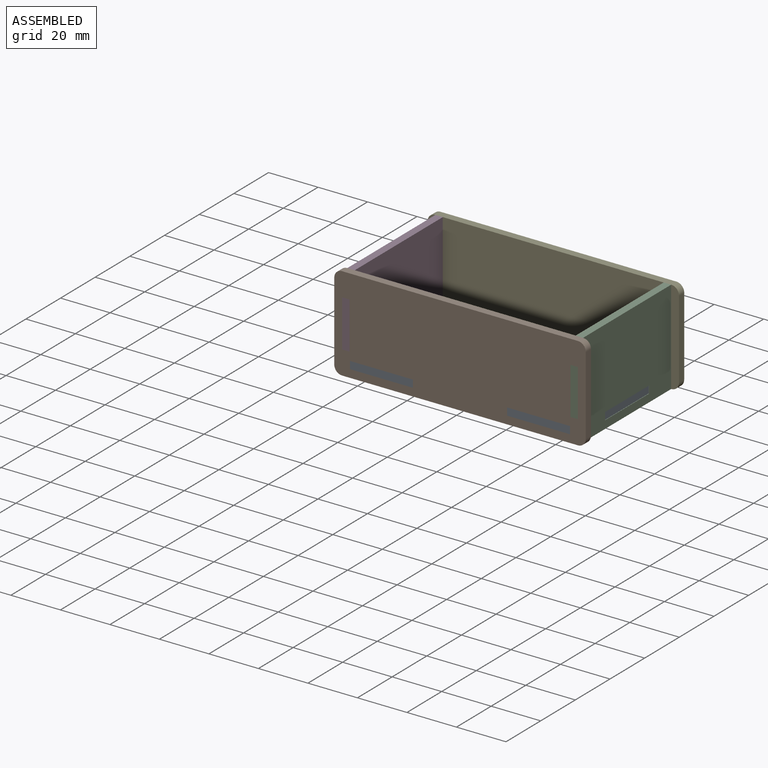
[diagram: assembled view]
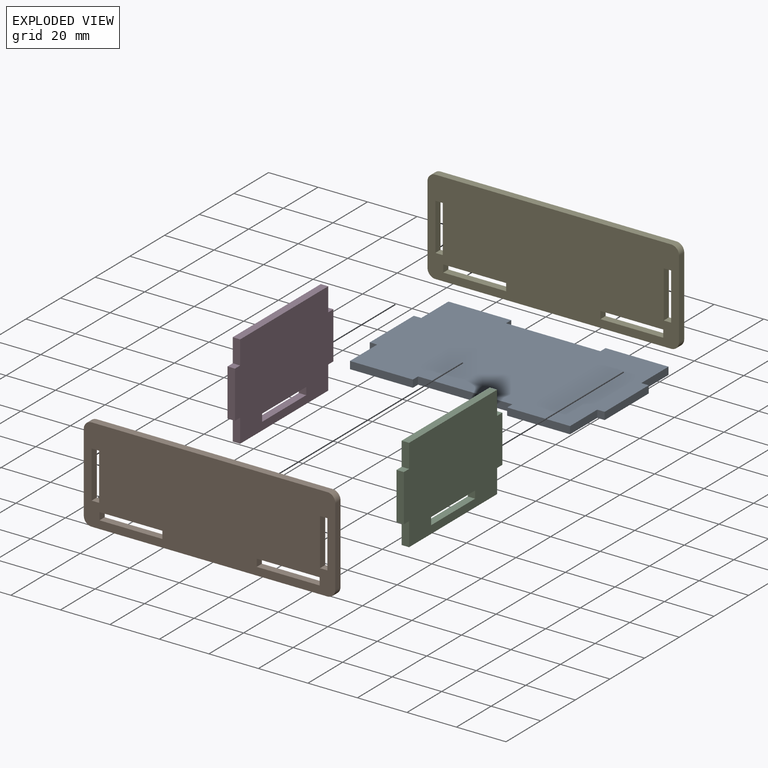
[diagram: exploded view]
GUIDED TOUR — MATED ASSEMBLY (Onshape document 2374aaf745cde1beca33ddbc, AutoMate assembly 2374aaf745cde1beca33ddbc_a4e29b9046c0e8ecc1a48bc9_9db063a48ec7c99bea0e0dff_default)

This assembly has 5 components, labeled P0..P4 below (a component is one placed occurrence of a part; the same part can appear more than once), held together by 4 mates. A mate is a constraint between two components; its type names the relative motion it leaves free:
  FASTENED — locks the two components together rigidly (no relative motion).
Axis/direction vectors are unit vectors and 'through' points are millimeter coordinates, both in the assembly's world frame.

MATES
  1. FASTENED "Fastened 3": P0 <-> P4, direction (0.000, 1.000, 0.000) through (25.46, 17.33, 14.54) mm
  2. FASTENED "Fastened 2": P2 <-> P4, direction (0.000, 1.000, 0.000) through (25.64, 17.33, 36.95) mm
  3. FASTENED "Fastened 4": P1 <-> P0, direction (0.000, -1.000, 0.000) through (-38.04, -39.46, 14.54) mm
  4. FASTENED "Fastened 1": P3 <-> P4, direction (0.000, 1.000, 0.000) through (-63.61, 17.33, 36.95) mm

ASSEMBLY ORDER
  1. P0 — the base component [order verified]
  2. P4 [order verified]
  3. P1 [order verified]
  4. P2 [order verified]
  5. P3 [order verified]
Order-tag legend:
  [order verified] — this step's position reverses a verified removal order: the component was checked to insert without passing through the ones already placed.

Of the 5 components, 5 carry the full construction recipe — the FeatureScript program that regenerates the part's solid from scratch; the rest are supplied as boundary geometry only.
Each toured component is shown spotlighted twice — in the assembled view, then in the exploded view, where a leader line traces a displaced component back to its assembled socket (saturated green if recipe-attached, orange if geometry-only; every other component desaturated gray) — followed by its recipe or geometry summary and the mates that hold it.
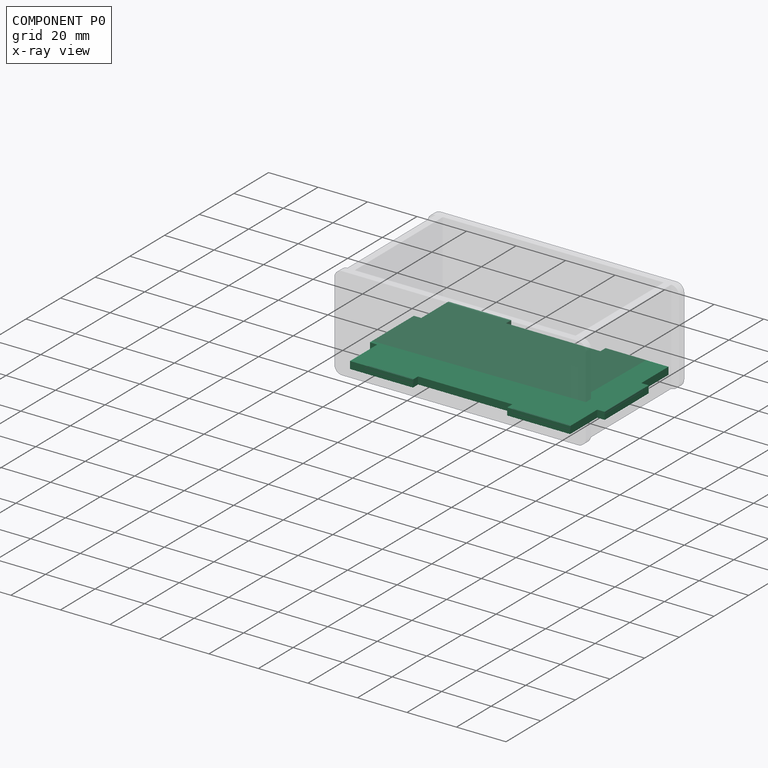
[diagram: component P0 — x-ray view]
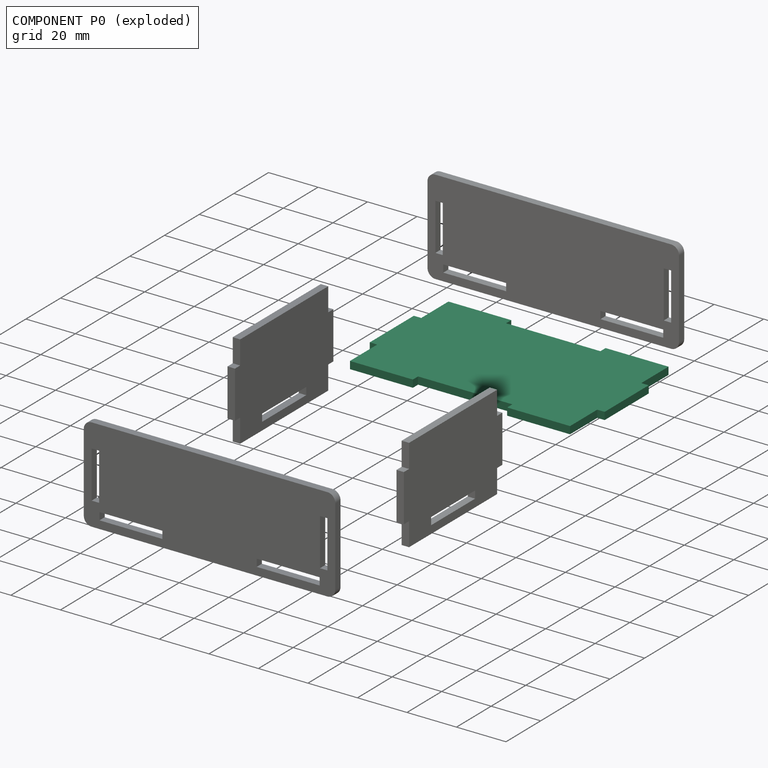
[diagram: component P0 — exploded]
COMPONENT P0 — recipe-attached (CADFS 00106038, mesh-verified: the recipe's output STEP matches this component's geometry to below the mesh-comparison resolution (tessellation chordal tolerance ~0.166 mm)).
Held by: FASTENED mate "Fastened 3" to P4; FASTENED mate "Fastened 4" to P1.
Construction recipe (FeatureScript — the CAD program that rebuilds this solid; sketch coordinates are in the units given by the * unit suffixes, e.g. mm):

FeatureScript 1511;
import(path : "onshape/std/geometry.fs", version : "1511.0");
import(path : "onshape/std/common.fs", version : "1511.0");
const mm = millimeter;
const VERTEX = EntityType.VERTEX;
const EDGE = EntityType.EDGE;
const FACE = EntityType.FACE;
const BODY = EntityType.BODY;
function v(x, y){return vector(x, y);}
function OD(order){return orderDisambiguation(order);}
function OSD(set){return originalSetDisambiguation(set);}
function TD(topology){return topologyDisambiguation(topology);}
function TDD(query){return trueDependencyDisambiguation(query);}
function sQuery(a, b, c) {return sketchEntityQuery(a, b, c);}

annotation { "Feature Type Name" : "Feature", "Feature Type Description" : "" }
export const myFeature = defineFeature(function(context is Context, id is Id, definition is map)
    precondition{}
    {
        {
            var Q0;
            Q0=qCreatedBy(makeId("Top.planeOp"),FACE);
            var sketch = newSketch(context, id + "F0", { "sketchPlane" : qUnion([Q0])});
            skLineSegment(sketch, "E0", {"start": v(0, 0) * mm, "end": v(19.05, 0) * mm});
            skLineSegment(sketch, "E1", {"start": v(19.05, 0) * mm, "end": v(19.05, 3) * mm});
            skLineSegment(sketch, "E2", {"start": v(19.05, 3) * mm, "end": v(44.45, 3) * mm});
            skLineSegment(sketch, "E3", {"start": v(44.45, 3) * mm, "end": v(44.45, 0) * mm});
            skLineSegment(sketch, "E4", {"start": v(44.45, -12.7) * mm, "end": v(47.45, -12.7) * mm});
            skLineSegment(sketch, "E5", {"start": v(47.45, -12.7) * mm, "end": v(47.45, -25.4) * mm});
            skLineSegment(sketch, "E6.MirrorCS", {"start": v(-19.05, 0) * mm, "end": v(-19.05, 3) * mm});
            skLineSegment(sketch, "E7.MirrorCS", {"start": v(-47.45, -12.7) * mm, "end": v(-47.45, -25.4) * mm});
            skLineSegment(sketch, "E8.MirrorCS", {"start": v(0, 0) * mm, "end": v(-19.05, 0) * mm});
            skLineSegment(sketch, "E9.MirrorCS", {"start": v(-44.45, -12.7) * mm, "end": v(-47.45, -12.7) * mm});
            skLineSegment(sketch, "E10.MirrorCS", {"start": v(-19.05, 3) * mm, "end": v(-44.45, 3) * mm});
            skLineSegment(sketch, "E11.MirrorCS", {"start": v(-44.45, 3) * mm, "end": v(-44.45, 0) * mm});
            skLineSegment(sketch, "E12", {"start": v(-47.45, -25.4) * mm, "end": v(47.45, -25.4) * mm, "construction": true});
            skLineSegment(sketch, "E13.MirrorCS", {"start": v(-44.45, -53.8) * mm, "end": v(-44.45, -50.8) * mm});
            skLineSegment(sketch, "E14.MirrorCS", {"start": v(19.05, -50.8) * mm, "end": v(19.05, -53.8) * mm});
            skLineSegment(sketch, "E15.MirrorCS", {"start": v(44.45, -53.8) * mm, "end": v(44.45, -50.8) * mm});
            skLineSegment(sketch, "E16.MirrorCS", {"start": v(-19.05, -50.8) * mm, "end": v(-19.05, -53.8) * mm});
            skLineSegment(sketch, "E17.MirrorCS", {"start": v(47.45, -38.1) * mm, "end": v(47.45, -25.4) * mm});
            skLineSegment(sketch, "E18.MirrorCS", {"start": v(-19.05, -53.8) * mm, "end": v(-44.45, -53.8) * mm});
            skLineSegment(sketch, "E19.MirrorCS", {"start": v(-44.45, -38.1) * mm, "end": v(-47.45, -38.1) * mm});
            skLineSegment(sketch, "E20.MirrorCS", {"start": v(0, -50.8) * mm, "end": v(19.05, -50.8) * mm});
            skLineSegment(sketch, "E21.MirrorCS", {"start": v(19.05, -53.8) * mm, "end": v(44.45, -53.8) * mm});
            skLineSegment(sketch, "E22.MirrorCS", {"start": v(44.45, -38.1) * mm, "end": v(47.45, -38.1) * mm});
            skLineSegment(sketch, "E23.MirrorCS", {"start": v(-47.45, -38.1) * mm, "end": v(-47.45, -25.4) * mm});
            skLineSegment(sketch, "E24.MirrorCS", {"start": v(0, -50.8) * mm, "end": v(-19.05, -50.8) * mm});
            skLineSegment(sketch, "E25", {"start": v(-44.45, 0) * mm, "end": v(-44.45, -12.7) * mm});
            skLineSegment(sketch, "E26", {"start": v(-44.45, -38.1) * mm, "end": v(-44.45, -50.8) * mm});
            skLineSegment(sketch, "E27", {"start": v(44.45, 0) * mm, "end": v(44.45, -12.7) * mm});
            skLineSegment(sketch, "E28", {"start": v(44.45, -38.1) * mm, "end": v(44.45, -50.8) * mm});
            skSolve(sketch);
        }
        {
            var Q0;
            Q0=makeQuery(id+"F0.imprint","IMPRINT",FACE,{"disambiguationData":[TD([[makeQuery(id+"F0.imprint","IMPRINT",EDGE,{"derivedFrom":sQuery(id+"F0.wireOp",EDGE,"E3")}),-1.0]])]});
            extrude(context, id + "F1", {"entities" : qUnion([Q0]), "depth" : 3 * mm});
        }
    });
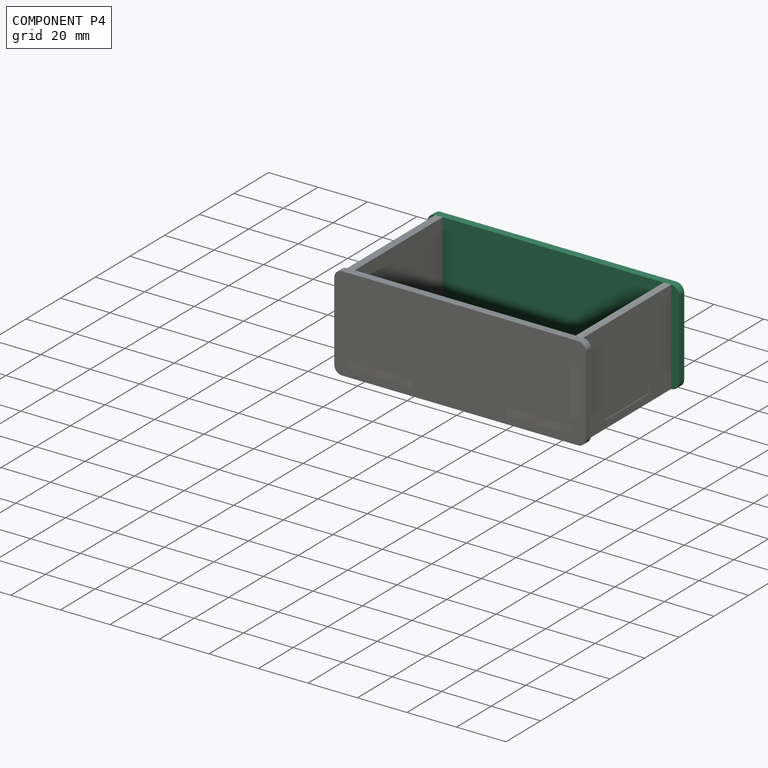
[diagram: component P4 — assembled]
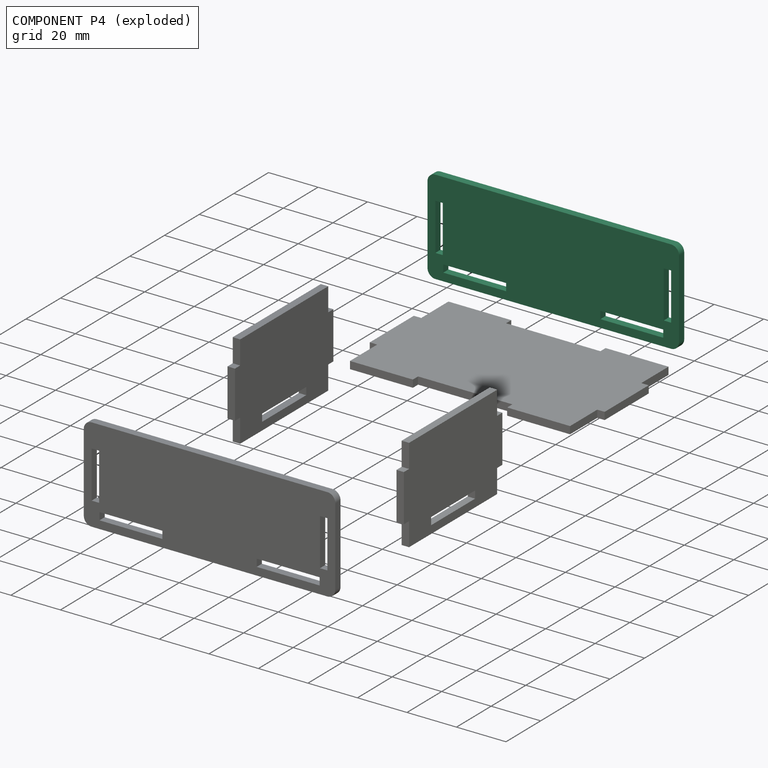
[diagram: component P4 — exploded]
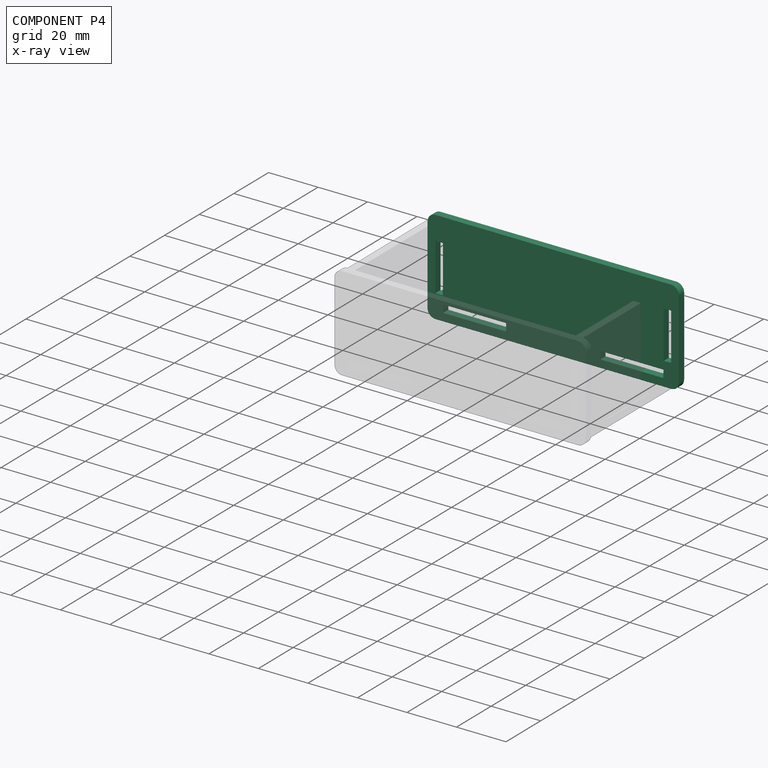
[diagram: component P4 — x-ray view]
COMPONENT P4 — same part as P1 (CADFS 00106036); its construction recipe is shown at P1.
Held by: FASTENED mate "Fastened 3" to P0; FASTENED mate "Fastened 2" to P2; FASTENED mate "Fastened 1" to P3.
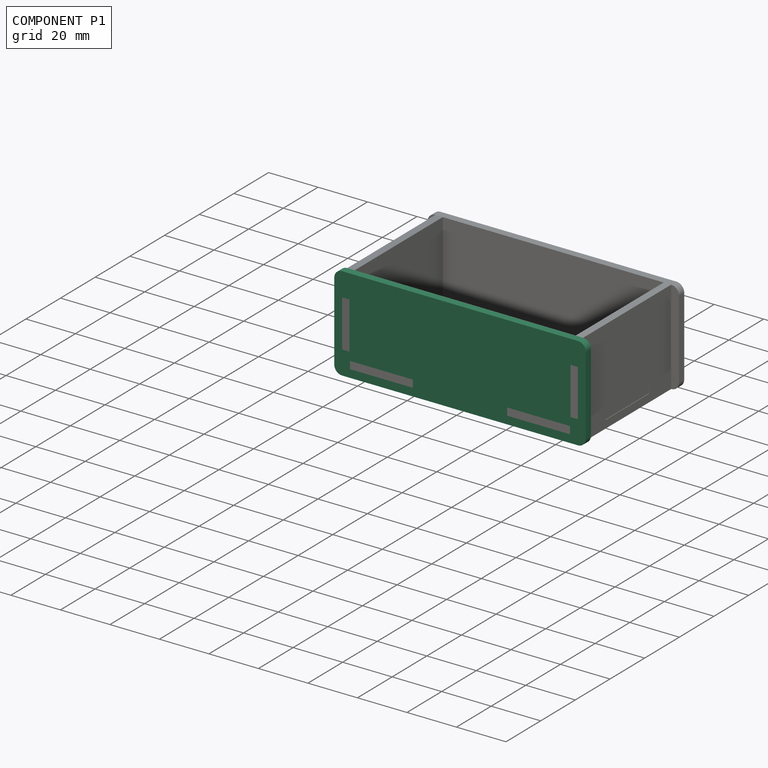
[diagram: component P1 — assembled]
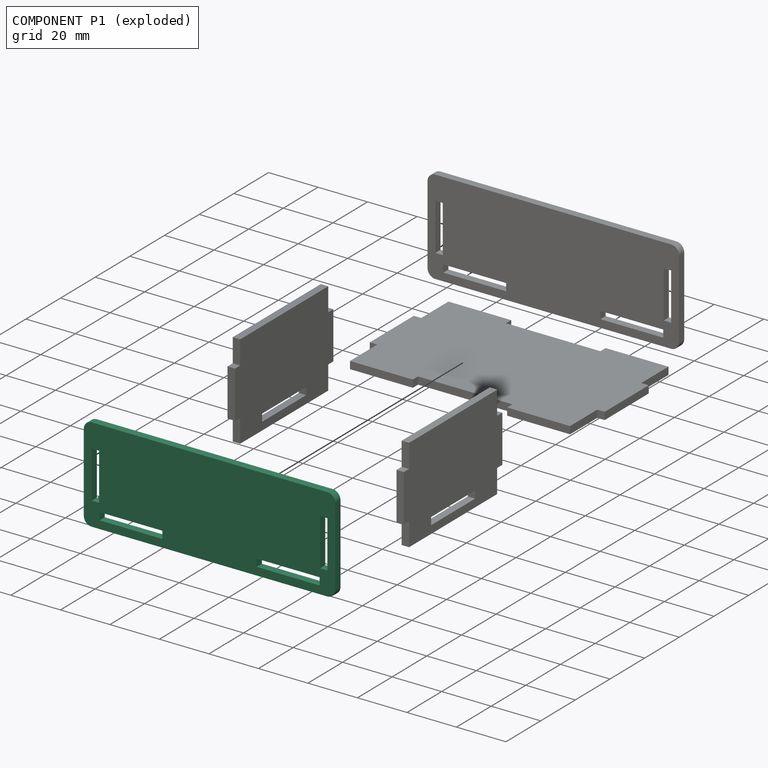
[diagram: component P1 — exploded]
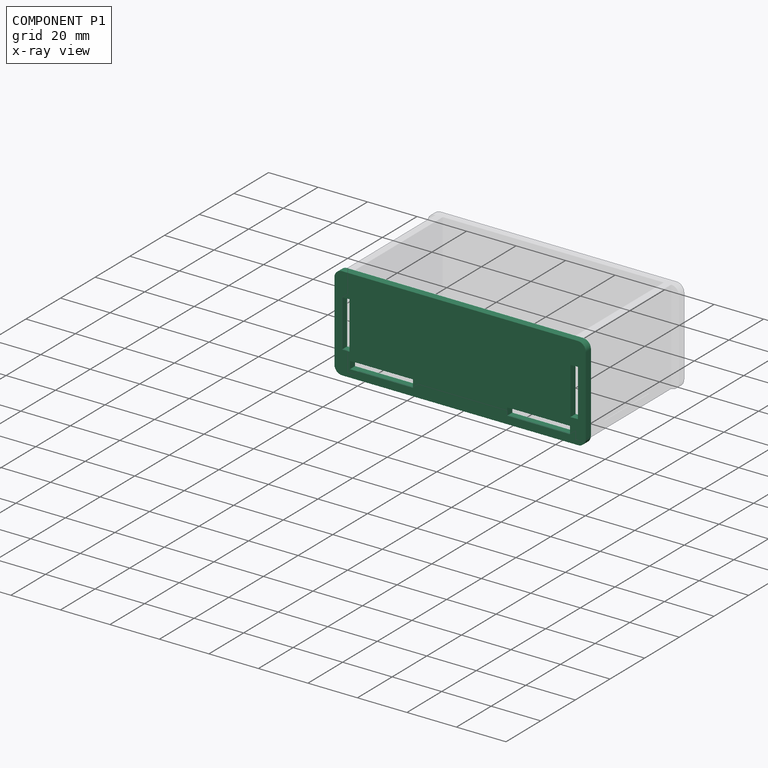
[diagram: component P1 — x-ray view]
COMPONENT P1 — recipe-attached (CADFS 00106036, mesh-verified: the recipe's output STEP matches this component's geometry to below the mesh-comparison resolution (tessellation chordal tolerance ~0.163 mm)).
Held by: FASTENED mate "Fastened 4" to P0.
Construction recipe (FeatureScript — the CAD program that rebuilds this solid; sketch coordinates are in the units given by the * unit suffixes, e.g. mm):

FeatureScript 1511;
import(path : "onshape/std/geometry.fs", version : "1511.0");
import(path : "onshape/std/common.fs", version : "1511.0");
const mm = millimeter;
const VERTEX = EntityType.VERTEX;
const EDGE = EntityType.EDGE;
const FACE = EntityType.FACE;
const BODY = EntityType.BODY;
function v(x, y){return vector(x, y);}
function OD(order){return orderDisambiguation(order);}
function OSD(set){return originalSetDisambiguation(set);}
function TD(topology){return topologyDisambiguation(topology);}
function TDD(query){return trueDependencyDisambiguation(query);}
function sQuery(a, b, c) {return sketchEntityQuery(a, b, c);}

annotation { "Feature Type Name" : "Feature", "Feature Type Description" : "" }
export const myFeature = defineFeature(function(context is Context, id is Id, definition is map)
    precondition{}
    {
        {
            var Q0;
            Q0=qCreatedBy(makeId("Front.planeOp"),FACE);
            var sketch = newSketch(context, id + "F0", { "sketchPlane" : qUnion([Q0])});
            skLineSegment(sketch, "E0.bottom", {"start": v(-47.63, 0) * mm, "end": v(47.63, 0) * mm});
            skLineSegment(sketch, "E0.top", {"start": v(-47.63, 38.1) * mm, "end": v(47.63, 38.1) * mm});
            skLineSegment(sketch, "E0.left", {"start": v(-50.8, 3.18) * mm, "end": v(-50.8, 34.92) * mm});
            skLineSegment(sketch, "E0.right", {"start": v(50.8, 3.18) * mm, "end": v(50.8, 34.93) * mm});
            skLineSegment(sketch, "E1.bottom", {"start": v(-44.45, 3.17) * mm, "end": v(-19.05, 3.17) * mm});
            skLineSegment(sketch, "E1.top", {"start": v(-44.45, 6.17) * mm, "end": v(-19.05, 6.17) * mm});
            skLineSegment(sketch, "E1.left", {"start": v(-44.45, 3.17) * mm, "end": v(-44.45, 6.17) * mm});
            skLineSegment(sketch, "E1.right", {"start": v(-19.05, 3.17) * mm, "end": v(-19.05, 6.17) * mm});
            skLineSegment(sketch, "E2.bottom", {"start": v(19.05, 3.17) * mm, "end": v(44.45, 3.17) * mm});
            skLineSegment(sketch, "E2.top", {"start": v(19.05, 6.17) * mm, "end": v(44.45, 6.17) * mm});
            skLineSegment(sketch, "E2.left", {"start": v(19.05, 3.17) * mm, "end": v(19.05, 6.17) * mm});
            skLineSegment(sketch, "E2.right", {"start": v(44.45, 3.17) * mm, "end": v(44.45, 6.17) * mm});
            skLineSegment(sketch, "E3.bottom", {"start": v(-44.63, 28.57) * mm, "end": v(-47.62, 28.57) * mm});
            skLineSegment(sketch, "E3.top", {"start": v(-44.63, 9.53) * mm, "end": v(-47.62, 9.53) * mm});
            skLineSegment(sketch, "E3.left", {"start": v(-44.63, 28.57) * mm, "end": v(-44.63, 9.52) * mm});
            skLineSegment(sketch, "E3.right", {"start": v(-47.63, 28.57) * mm, "end": v(-47.63, 9.53) * mm});
            skLineSegment(sketch, "E4.bottom", {"start": v(47.62, 28.57) * mm, "end": v(44.63, 28.57) * mm});
            skLineSegment(sketch, "E4.top", {"start": v(47.62, 9.52) * mm, "end": v(44.63, 9.52) * mm});
            skLineSegment(sketch, "E4.left", {"start": v(47.63, 28.57) * mm, "end": v(47.63, 9.52) * mm});
            skLineSegment(sketch, "E4.right", {"start": v(44.63, 28.58) * mm, "end": v(44.63, 9.53) * mm});
            skPoint(sketch, "E5.visualSharp", {"position": v(-50.8, 38.1) * mm});
            skArc(sketch, "E5.filletArc", {"start": v(-47.63, 38.1) * mm, "mid": v(-49.87, 37.17) * mm, "end": v(-50.8, 34.92) * mm});
            skPoint(sketch, "E6.visualSharp", {"position": v(50.8, 38.1) * mm});
            skArc(sketch, "E6.filletArc", {"start": v(50.8, 34.93) * mm, "mid": v(49.87, 37.17) * mm, "end": v(47.63, 38.1) * mm});
            skPoint(sketch, "E7.visualSharp", {"position": v(-50.8, 0) * mm});
            skArc(sketch, "E7.filletArc", {"start": v(-50.8, 3.17) * mm, "mid": v(-49.87, 0.93) * mm, "end": v(-47.63, 0) * mm});
            skPoint(sketch, "E8.visualSharp", {"position": v(50.8, 0) * mm});
            skArc(sketch, "E8.filletArc", {"start": v(47.63, 0) * mm, "mid": v(49.87, 0.93) * mm, "end": v(50.8, 3.18) * mm});
            skSolve(sketch);
        }
        {
            var Q0;
            Q0=makeQuery(id+"F0.imprint","IMPRINT",FACE,{"disambiguationData":[TD([[makeQuery(id+"F0.imprint","IMPRINT",EDGE,{"derivedFrom":sQuery(id+"F0.wireOp",EDGE,"E0.bottom")}),1.0]])]});
            extrude(context, id + "F1", {"entities" : qUnion([Q0]), "depth" : 3 * mm});
        }
    });
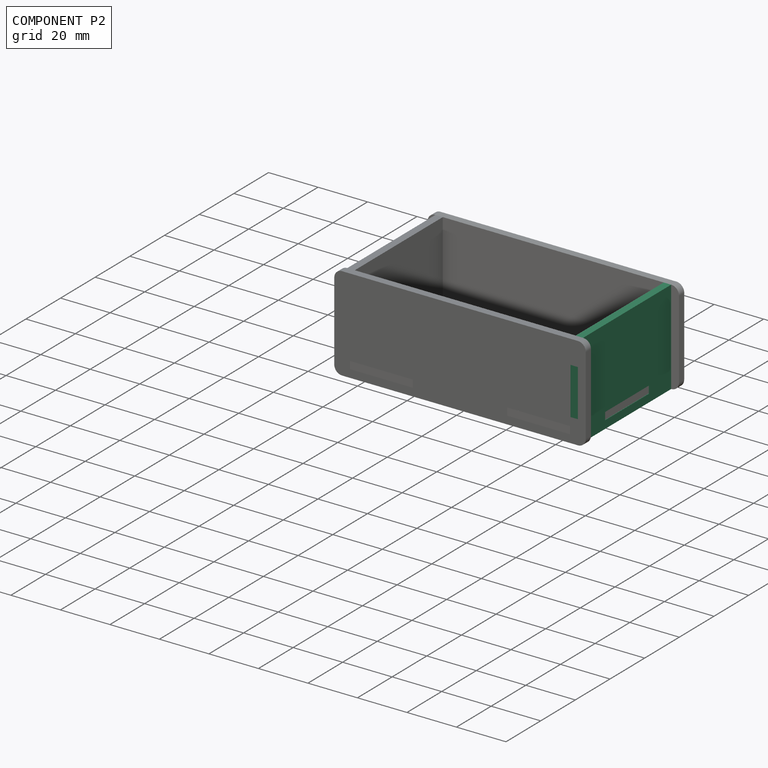
[diagram: component P2 — assembled]
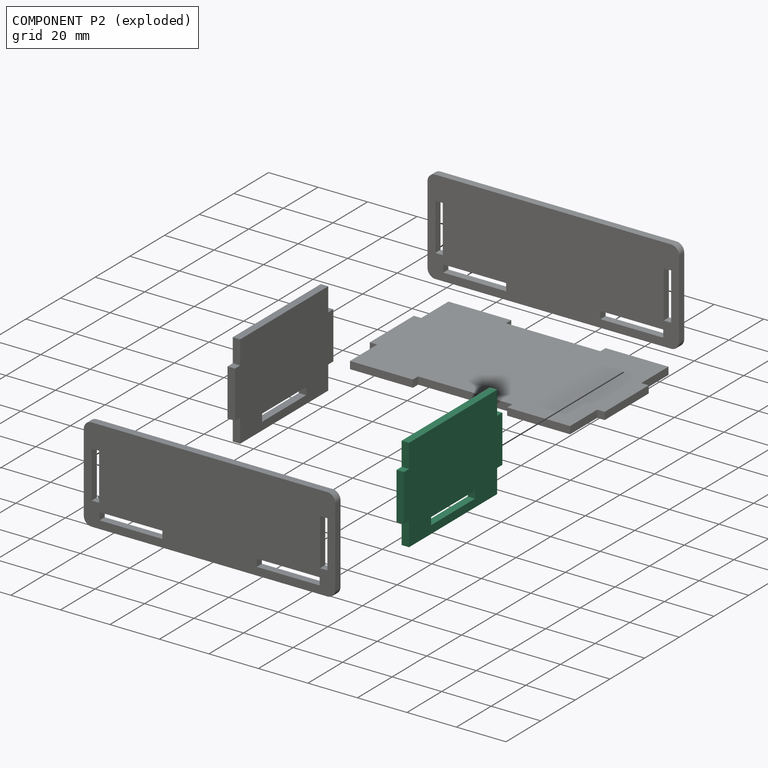
[diagram: component P2 — exploded]
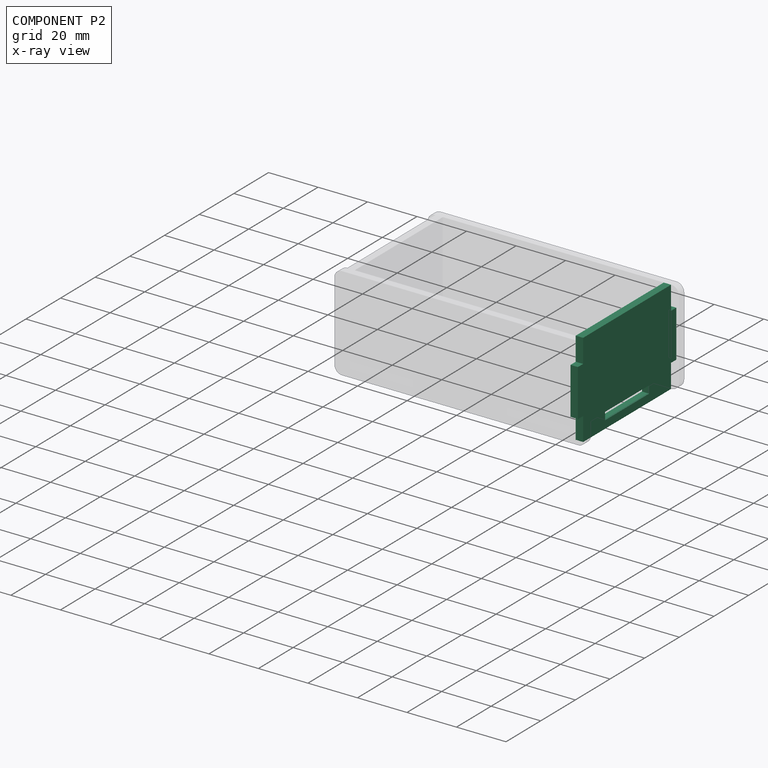
[diagram: component P2 — x-ray view]
COMPONENT P2 — recipe-attached (CADFS 00106037, mesh-verified: the recipe's output STEP matches this component's geometry to below the mesh-comparison resolution (tessellation chordal tolerance ~0.103 mm)).
Held by: FASTENED mate "Fastened 2" to P4.
Construction recipe (FeatureScript — the CAD program that rebuilds this solid; sketch coordinates are in the units given by the * unit suffixes, e.g. mm):

FeatureScript 1511;
import(path : "onshape/std/geometry.fs", version : "1511.0");
import(path : "onshape/std/common.fs", version : "1511.0");
const mm = millimeter;
const VERTEX = EntityType.VERTEX;
const EDGE = EntityType.EDGE;
const FACE = EntityType.FACE;
const BODY = EntityType.BODY;
function v(x, y){return vector(x, y);}
function OD(order){return orderDisambiguation(order);}
function OSD(set){return originalSetDisambiguation(set);}
function TD(topology){return topologyDisambiguation(topology);}
function TDD(query){return trueDependencyDisambiguation(query);}
function sQuery(a, b, c) {return sketchEntityQuery(a, b, c);}

annotation { "Feature Type Name" : "Feature", "Feature Type Description" : "" }
export const myFeature = defineFeature(function(context is Context, id is Id, definition is map)
    precondition{}
    {
        {
            var Q0;
            Q0=qCreatedBy(makeId("Right.planeOp"),FACE);
            var sketch = newSketch(context, id + "F0", { "sketchPlane" : qUnion([Q0])});
            skPoint(sketch, "E0.middle", {"position": v(0, 0) * mm});
            skLineSegment(sketch, "E1", {"start": v(-28.4, 9.53) * mm, "end": v(-25.4, 9.53) * mm});
            skLineSegment(sketch, "E2", {"start": v(-25.4, 9.53) * mm, "end": v(-25.4, 19.05) * mm});
            skLineSegment(sketch, "E3", {"start": v(-28.4, -9.52) * mm, "end": v(-25.4, -9.52) * mm});
            skLineSegment(sketch, "E4", {"start": v(-25.4, -9.53) * mm, "end": v(-25.4, -19.05) * mm});
            skLineSegment(sketch, "E5", {"start": v(-28.4, 9.53) * mm, "end": v(-28.4, -9.53) * mm});
            skLineSegment(sketch, "E6", {"start": v(-25.4, 19.05) * mm, "end": v(0, 19.05) * mm});
            skLineSegment(sketch, "E7", {"start": v(-25.4, -19.05) * mm, "end": v(0, -19.05) * mm});
            skLineSegment(sketch, "E8", {"start": v(0, -12.88) * mm, "end": v(-12.7, -12.88) * mm});
            skLineSegment(sketch, "E9", {"start": v(-12.7, -12.88) * mm, "end": v(-12.7, -15.88) * mm});
            skLineSegment(sketch, "E10", {"start": v(-12.7, -15.88) * mm, "end": v(0, -15.88) * mm});
            skLineSegment(sketch, "E11.MirrorCS", {"start": v(12.7, -12.88) * mm, "end": v(12.7, -15.88) * mm});
            skLineSegment(sketch, "E12.MirrorCS", {"start": v(28.4, 9.53) * mm, "end": v(25.4, 9.53) * mm});
            skLineSegment(sketch, "E13.MirrorCS", {"start": v(28.4, -9.52) * mm, "end": v(25.4, -9.52) * mm});
            skLineSegment(sketch, "E14.MirrorCS", {"start": v(25.4, 19.05) * mm, "end": v(0, 19.05) * mm});
            skLineSegment(sketch, "E15.MirrorCS", {"start": v(28.4, 9.53) * mm, "end": v(28.4, -9.53) * mm});
            skLineSegment(sketch, "E16.MirrorCS", {"start": v(25.4, -9.53) * mm, "end": v(25.4, -19.05) * mm});
            skLineSegment(sketch, "E17.MirrorCS", {"start": v(25.4, 9.53) * mm, "end": v(25.4, 19.05) * mm});
            skLineSegment(sketch, "E18.MirrorCS", {"start": v(12.7, -15.88) * mm, "end": v(0, -15.88) * mm});
            skLineSegment(sketch, "E19.MirrorCS", {"start": v(25.4, -19.05) * mm, "end": v(0, -19.05) * mm});
            skLineSegment(sketch, "E20.MirrorCS", {"start": v(0, -12.88) * mm, "end": v(12.7, -12.88) * mm});
            skSolve(sketch);
        }
        {
            var Q0;
            Q0=makeQuery(id+"F0.imprint","IMPRINT",FACE,{"disambiguationData":[TD([[makeQuery(id+"F0.imprint","IMPRINT",EDGE,{"derivedFrom":sQuery(id+"F0.wireOp",EDGE,"E1")}),-1.0]])]});
            extrude(context, id + "F1", {"entities" : qUnion([Q0]), "depth" : 3 * mm});
        }
    });
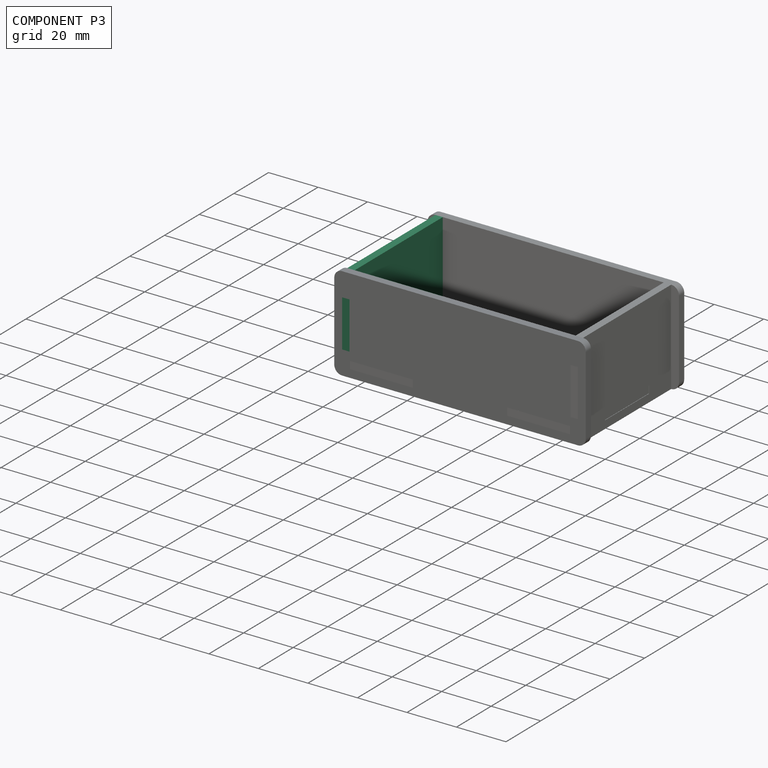
[diagram: component P3 — assembled]
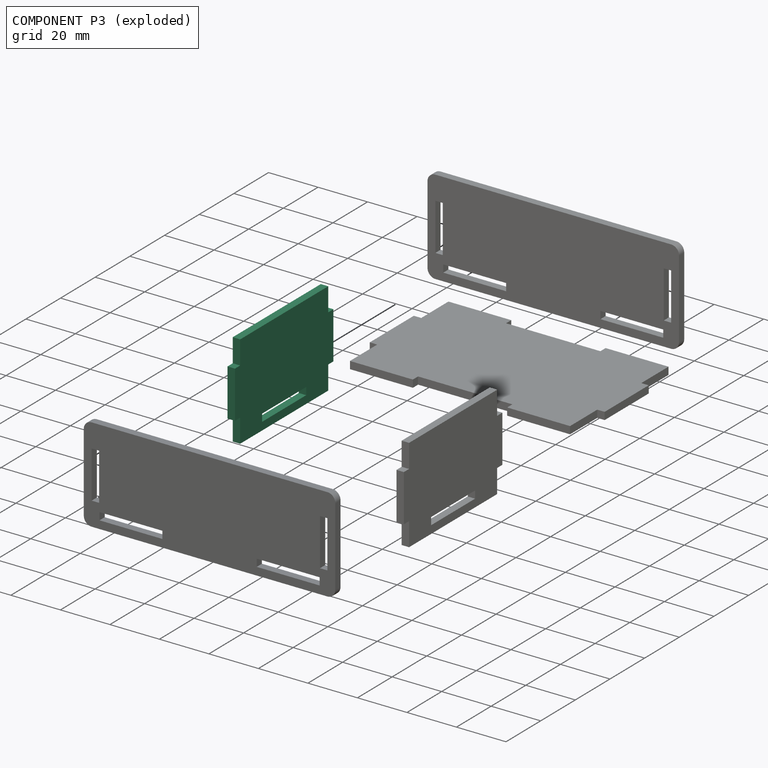
[diagram: component P3 — exploded]
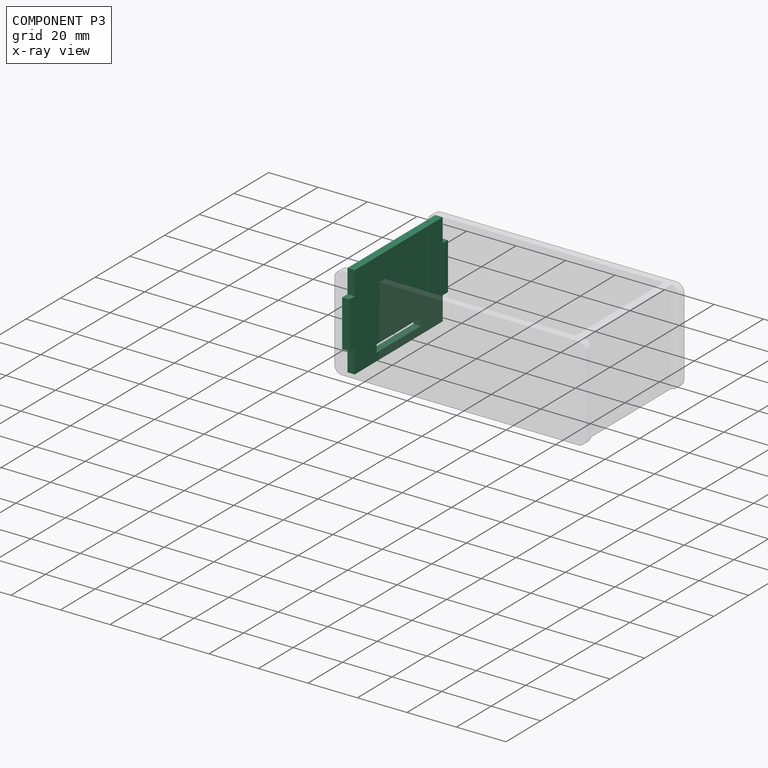
[diagram: component P3 — x-ray view]
COMPONENT P3 — same part as P2 (CADFS 00106037); its construction recipe is shown at P2.
Held by: FASTENED mate "Fastened 1" to P4.
PROVENANCE & LICENSES
Assembly (occurrences, transforms, mates, per-part STEP geometry): AutoMate dataset, Zenodo record 7776208, CC0.
Construction recipes: CADFS (HuggingFace VladPyatov/CADFS, CC-BY-4.0, layered over the ABC dataset), FeatureScript reconstruction programs keyed by ABC model id.
Join: ABC meta listings map ABC model id -> Onshape documentId; within a shared document, parts are matched by geometric signature (bounding-box dims + volume at 0.1% relative tolerance, exact B-rep face/solid counts).
Verification: 5 of this assembly's 5 components carry a recipe attachment, and every attachment is mesh-verified: the CADFS STEP and the AutoMate member STEP were compared as meshes in their shared local frame (symmetric sampled-point-to-mesh distance); worst across the 5 attachments: below the mesh-comparison resolution (tessellation chordal tolerance ~0.166 mm) on a 111 mm part.
Renders: orthographic iso camera (az 35 / el 25); the floor grid conveys scale (grid pitch printed in each image; no ruler). In the exploded view each component is displaced by its stored offset vector: the offsets alone carry the explosion direction (mate normal/axis signs are not orientation cues and do not encode it), and separation distances are assigned per mate-chain, not proportionally to assembly-order depth.
